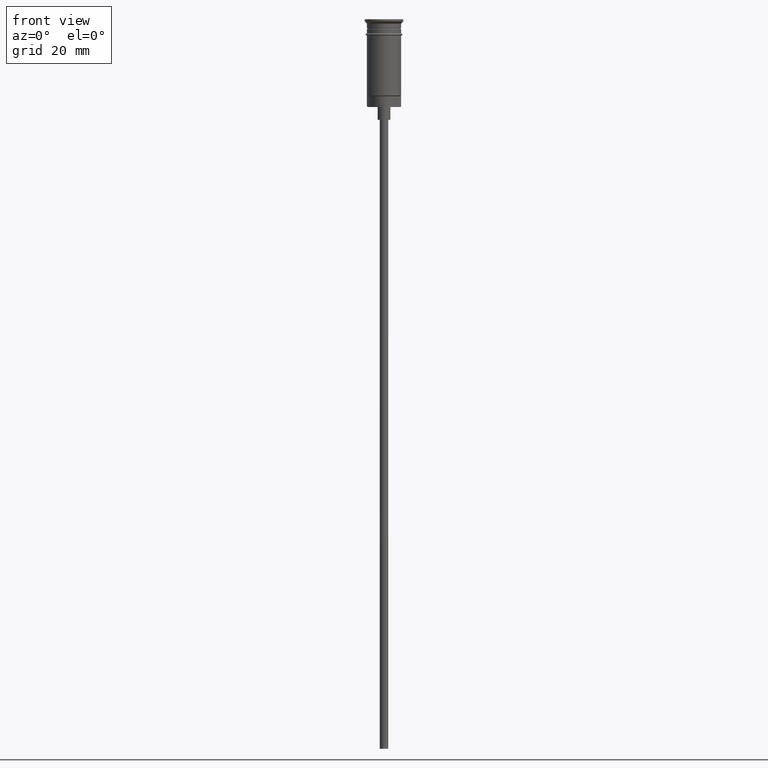
[diagram: clean part render]
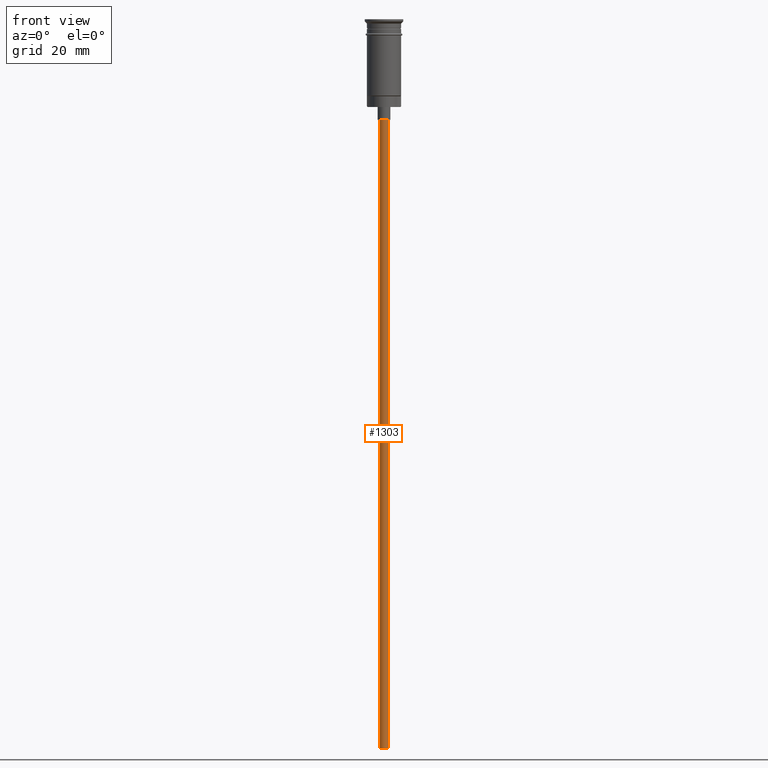
[diagram: same view with one face highlighted and labeled with its STEP entity id]
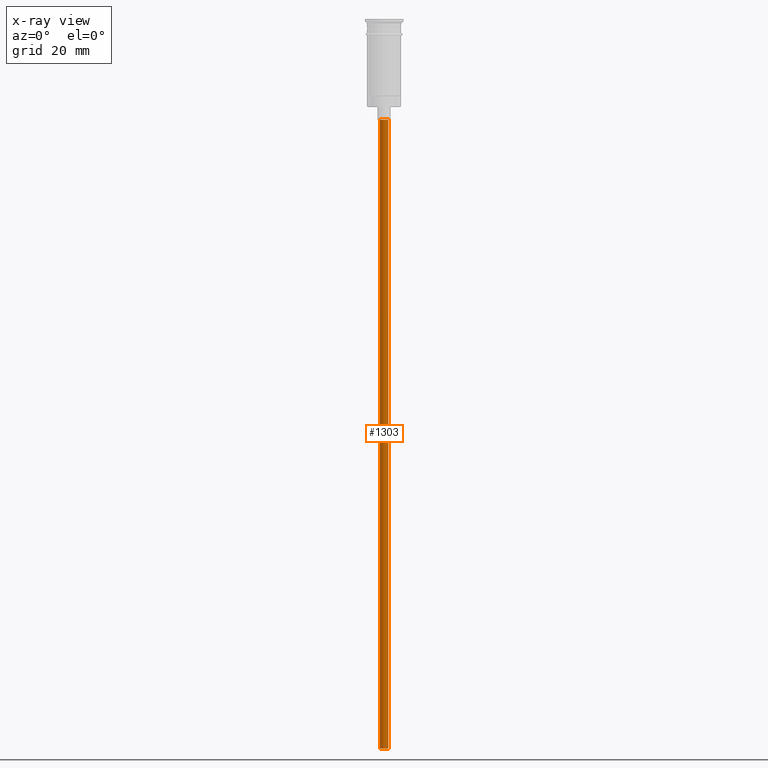
[diagram: x-ray of the same camera — body ghosted, the highlighted face saturated]
A machine part, front view. The second image highlights one B-rep face of the part: STEP entity #1303.
The next image is the same camera in x-ray: the body ghosted, the highlighted face saturated — about 0% of this face is hidden behind the body in this view.
In plain terms, the highlighted cylindrical surface (edge-blend (fillet) strip) has radius 1 mm, axis along (-0, -0, 1).
Its self-contained STEP definition (entity closure, byte-faithful):
#100 = DIRECTION ( 'NONE',  ( 0.000000000000000000, 0.000000000000000000, -1.000000000000000000 ) ) ;
#111 = CIRCLE ( 'NONE', #1391, 0.9999999999999997780 ) ;
#179 = CARTESIAN_POINT ( 'NONE',  ( 0.9999999999999997780, 0.000000000000000000, -170.4999999999999716 ) ) ;
#188 = EDGE_CURVE ( 'NONE', #202, #306, #522, .T. ) ;
#190 = CIRCLE ( 'NONE', #1006, 0.9999999999999997780 ) ;
#202 = VERTEX_POINT ( 'NONE', #823 ) ;
#245 = VERTEX_POINT ( 'NONE', #1552 ) ;
#247 = AXIS2_PLACEMENT_3D ( 'NONE', #535, #661, #402 ) ;
#249 = EDGE_CURVE ( 'NONE', #245, #202, #190, .T. ) ;
#252 = CARTESIAN_POINT ( 'NONE',  ( 0.000000000000000000, 0.000000000000000000, -23.49999999999999645 ) ) ;
#296 = ORIENTED_EDGE ( 'NONE', *, *, #1060, .T. ) ;
#306 = VERTEX_POINT ( 'NONE', #1489 ) ;
#352 = CARTESIAN_POINT ( 'NONE',  ( 0.000000000000000000, 0.000000000000000000, -170.4999999999999716 ) ) ;
#402 = DIRECTION ( 'NONE',  ( 1.000000000000000000, 0.000000000000000000, 0.000000000000000000 ) ) ;
#422 = ORIENTED_EDGE ( 'NONE', *, *, #249, .F. ) ;
#436 = VECTOR ( 'NONE', #994, 1000.000000000000000 ) ;
#522 = LINE ( 'NONE', #632, #436 ) ;
#535 = CARTESIAN_POINT ( 'NONE',  ( 0.000000000000000000, 0.000000000000000000, -170.4999999999999716 ) ) ;
#554 = ORIENTED_EDGE ( 'NONE', *, *, #188, .F. ) ;
#586 = LINE ( 'NONE', #179, #1187 ) ;
#609 = DIRECTION ( 'NONE',  ( -1.000000000000000000, 0.000000000000000000, 0.000000000000000000 ) ) ;
#632 = CARTESIAN_POINT ( 'NONE',  ( -0.9999999999999997780, 1.224646799147352961E-16, -170.4999999999999716 ) ) ;
#661 = DIRECTION ( 'NONE',  ( -0.000000000000000000, -0.000000000000000000, 1.000000000000000000 ) ) ;
#720 = DIRECTION ( 'NONE',  ( 0.000000000000000000, 0.000000000000000000, -1.000000000000000000 ) ) ;
#744 = DIRECTION ( 'NONE',  ( -1.000000000000000000, 0.000000000000000000, 0.000000000000000000 ) ) ;
#750 = EDGE_CURVE ( 'NONE', #907, #306, #111, .T. ) ;
#823 = CARTESIAN_POINT ( 'NONE',  ( -0.9999999999999997780, 1.224646799147352961E-16, -170.4999999999999716 ) ) ;
#899 = EDGE_LOOP ( 'NONE', ( #554, #422, #296, #1269 ) ) ;
#907 = VERTEX_POINT ( 'NONE', #1475 ) ;
#994 = DIRECTION ( 'NONE',  ( -0.000000000000000000, -0.000000000000000000, 1.000000000000000000 ) ) ;
#1006 = AXIS2_PLACEMENT_3D ( 'NONE', #352, #100, #609 ) ;
#1060 = EDGE_CURVE ( 'NONE', #245, #907, #586, .T. ) ;
#1187 = VECTOR ( 'NONE', #1280, 1000.000000000000000 ) ;
#1219 = CYLINDRICAL_SURFACE ( 'NONE', #247, 0.9999999999999997780 ) ;
#1269 = ORIENTED_EDGE ( 'NONE', *, *, #750, .T. ) ;
#1280 = DIRECTION ( 'NONE',  ( -0.000000000000000000, -0.000000000000000000, 1.000000000000000000 ) ) ;
#1303 = ADVANCED_FACE ( 'NONE', ( #1499 ), #1219, .T. ) ;
#1391 = AXIS2_PLACEMENT_3D ( 'NONE', #252, #720, #744 ) ;
#1475 = CARTESIAN_POINT ( 'NONE',  ( 0.9999999999999997780, 0.000000000000000000, -23.49999999999999645 ) ) ;
#1489 = CARTESIAN_POINT ( 'NONE',  ( -0.9999999999999997780, 1.224646799147352961E-16, -23.49999999999999645 ) ) ;
#1499 = FACE_OUTER_BOUND ( 'NONE', #899, .T. ) ;
#1552 = CARTESIAN_POINT ( 'NONE',  ( 0.9999999999999997780, 0.000000000000000000, -170.4999999999999716 ) ) ;